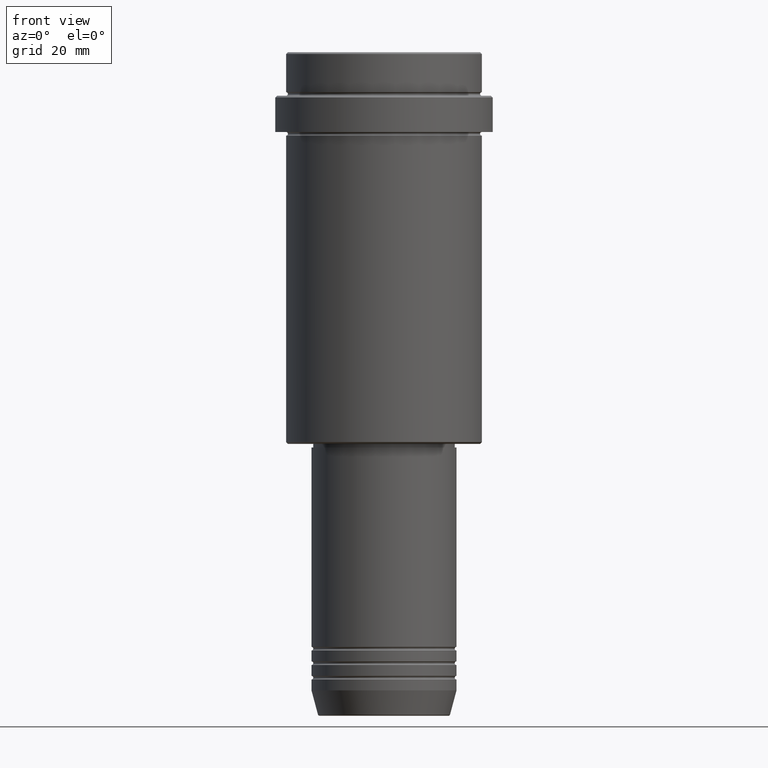
[diagram: clean part render]
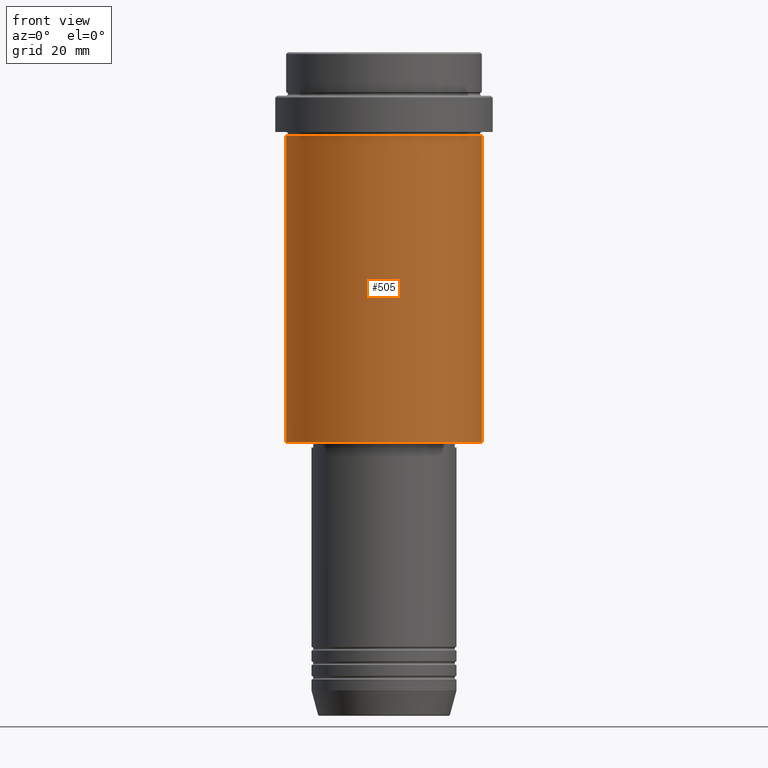
[diagram: same view with one face highlighted and labeled with its STEP entity id]
A machine part, front view. The second image highlights one B-rep face of the part: STEP entity #505.
In plain terms, the highlighted cylindrical surface (partial cylindrical patch) has radius 27 mm, axis along (-0, -0, 1).
Its self-contained STEP definition (entity closure, byte-faithful):
#41 = CARTESIAN_POINT ( 'NONE',  ( 0.000000000000000000, 0.000000000000000000, -107.4999999999999716 ) ) ;
#76 = EDGE_CURVE ( 'NONE', #897, #161, #1177, .T. ) ;
#102 = DIRECTION ( 'NONE',  ( -0.000000000000000000, -0.000000000000000000, 1.000000000000000000 ) ) ;
#161 = VERTEX_POINT ( 'NONE', #1350 ) ;
#231 = DIRECTION ( 'NONE',  ( -0.000000000000000000, -0.000000000000000000, 1.000000000000000000 ) ) ;
#339 = FACE_OUTER_BOUND ( 'NONE', #1008, .T. ) ;
#399 = CARTESIAN_POINT ( 'NONE',  ( -26.99999999999999645, 3.306546357697853339E-15, -107.4999999999999716 ) ) ;
#416 = CARTESIAN_POINT ( 'NONE',  ( 26.99999999999999645, 0.000000000000000000, 0.000000000000000000 ) ) ;
#432 = DIRECTION ( 'NONE',  ( 1.000000000000000000, 0.000000000000000000, 0.000000000000000000 ) ) ;
#450 = LINE ( 'NONE', #416, #653 ) ;
#505 = ADVANCED_FACE ( 'NONE', ( #339 ), #542, .T. ) ;
#537 = VECTOR ( 'NONE', #1018, 1000.000000000000000 ) ;
#542 = CYLINDRICAL_SURFACE ( 'NONE', #1268, 26.99999999999999645 ) ;
#559 = ORIENTED_EDGE ( 'NONE', *, *, #1126, .F. ) ;
#581 = CARTESIAN_POINT ( 'NONE',  ( -26.99999999999999645, 3.306546357697853339E-15, 0.000000000000000000 ) ) ;
#653 = VECTOR ( 'NONE', #1416, 1000.000000000000000 ) ;
#668 = LINE ( 'NONE', #581, #537 ) ;
#700 = AXIS2_PLACEMENT_3D ( 'NONE', #41, #1324, #1036 ) ;
#720 = EDGE_CURVE ( 'NONE', #791, #1055, #1359, .T. ) ;
#748 = CARTESIAN_POINT ( 'NONE',  ( 0.000000000000000000, 0.000000000000000000, 0.000000000000000000 ) ) ;
#777 = ORIENTED_EDGE ( 'NONE', *, *, #982, .T. ) ;
#791 = VERTEX_POINT ( 'NONE', #399 ) ;
#897 = VERTEX_POINT ( 'NONE', #1078 ) ;
#982 = EDGE_CURVE ( 'NONE', #1055, #161, #450, .T. ) ;
#1003 = ORIENTED_EDGE ( 'NONE', *, *, #76, .F. ) ;
#1008 = EDGE_LOOP ( 'NONE', ( #559, #1080, #777, #1003 ) ) ;
#1018 = DIRECTION ( 'NONE',  ( -0.000000000000000000, -0.000000000000000000, 1.000000000000000000 ) ) ;
#1036 = DIRECTION ( 'NONE',  ( -1.000000000000000000, 0.000000000000000000, 0.000000000000000000 ) ) ;
#1055 = VERTEX_POINT ( 'NONE', #1219 ) ;
#1078 = CARTESIAN_POINT ( 'NONE',  ( -26.99999999999999645, 3.306546357697853339E-15, -23.00000000000000000 ) ) ;
#1080 = ORIENTED_EDGE ( 'NONE', *, *, #720, .T. ) ;
#1126 = EDGE_CURVE ( 'NONE', #791, #897, #668, .T. ) ;
#1172 = AXIS2_PLACEMENT_3D ( 'NONE', #1321, #102, #432 ) ;
#1177 = CIRCLE ( 'NONE', #1172, 26.99999999999999645 ) ;
#1184 = DIRECTION ( 'NONE',  ( 1.000000000000000000, 0.000000000000000000, 0.000000000000000000 ) ) ;
#1219 = CARTESIAN_POINT ( 'NONE',  ( 26.99999999999999645, 0.000000000000000000, -107.4999999999999716 ) ) ;
#1268 = AXIS2_PLACEMENT_3D ( 'NONE', #748, #231, #1184 ) ;
#1321 = CARTESIAN_POINT ( 'NONE',  ( 0.000000000000000000, 0.000000000000000000, -23.00000000000000000 ) ) ;
#1324 = DIRECTION ( 'NONE',  ( -0.000000000000000000, -0.000000000000000000, 1.000000000000000000 ) ) ;
#1350 = CARTESIAN_POINT ( 'NONE',  ( 26.99999999999999645, 0.000000000000000000, -23.00000000000000000 ) ) ;
#1359 = CIRCLE ( 'NONE', #700, 26.99999999999999645 ) ;
#1416 = DIRECTION ( 'NONE',  ( -0.000000000000000000, -0.000000000000000000, 1.000000000000000000 ) ) ;